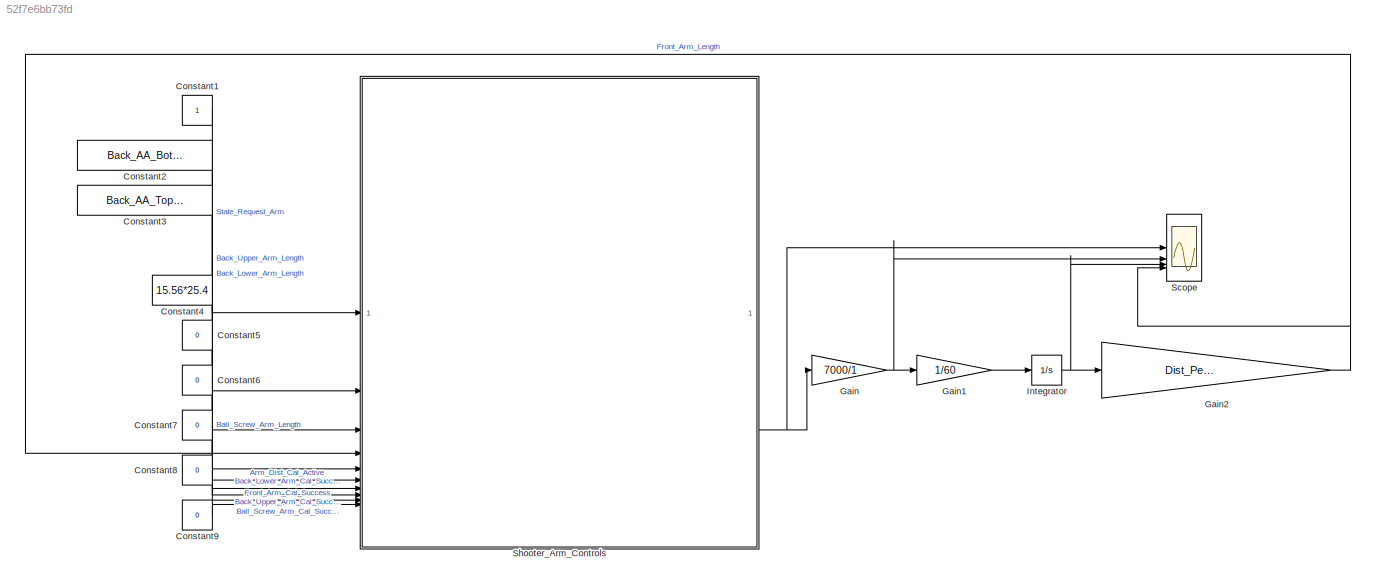
MODEL slx_52f7e6bb73fd
KIND model
CONFIG AbsTol = auto
CONFIG EnableMultiTasking = off
CONFIG FixedStep = 0.02
CONFIG MaxStep = 0.02
CONFIG MinStep = auto
CONFIG RelTol = 1e-3
CONFIG SampleTimeConstraint = Unconstrained
CONFIG SolverName = VariableStepAuto
CONFIG StartTime = 0.0
CONFIG StopTime = 10.0
BLOCK [Constant] Constant1
BLOCK [Constant] Constant2
  Value = Back_AA_Bot_Min_Ext
BLOCK [Constant] Constant3
  Value = Back_AA_Top_Min_Ext
BLOCK [Constant] Constant4
  Value = 15.56*25.4
BLOCK [Constant] Constant5
  Value = 0
BLOCK [Constant] Constant6
  Value = 0
BLOCK [Constant] Constant7
  Value = 0
BLOCK [Constant] Constant8
  Value = 0
BLOCK [Constant] Constant9
  Value = 0
BLOCK [Gain] Gain
  Gain = 7000/1
BLOCK [Gain] Gain1
  Gain = 1/60
BLOCK [Gain] Gain2
  Gain = Dist_Per_Rev_Back_Lower
BLOCK [Integrator] Integrator
BLOCK [Scope] Scope
  Floating = off
  NumInputPorts = 4
  ScopeSpecificationString = Simulink.scopes.TimeScopeBlockCfg('CurrentConfiguration', extmgr.ConfigurationSet(extmgr.Configuration('Core','General UI',true),extmgr.Configuration('Core','Source UI',true),extmgr.Configuration('Sources','WiredSimulink',true),extmgr.Configuration('Visuals','Time Domain',true,'SerializedDisplays',{struct('MinYLimReal','-0.125','MaxYLimReal','1.125','YLabelReal','','MinYLimMag','0.00000','MaxYLimM...<+3541ch>
BLOCK [SubSystem] Shooter_Arm_Controls
  ReferencedSubsystem = Shooter_Arm_Controls
LINE Constant1:1 -> Shooter_Arm_Controls:1
LINE Constant2:1 -> Shooter_Arm_Controls:2
LINE Constant3:1 -> Shooter_Arm_Controls:3
LINE Constant4:1 -> Shooter_Arm_Controls:5
LINE Constant5:1 -> Shooter_Arm_Controls:6
LINE Constant6:1 -> Shooter_Arm_Controls:7
LINE Constant7:1 -> Shooter_Arm_Controls:8
LINE Constant8:1 -> Shooter_Arm_Controls:9
LINE Constant9:1 -> Shooter_Arm_Controls:10
LINE Gain1:1 -> Integrator:1
NET Gain2:1 -> Scope:4, Shooter_Arm_Controls:4
NET Gain:1 -> Gain1:1, Scope:2
NET Integrator:1 -> Gain2:1, Scope:3
NET Shooter_Arm_Controls:3 -> Gain:1, Scope:1
note: NET lines group one-source signal fan-out (src -> all destinations, sorted); 1:1 wires keep LINE
